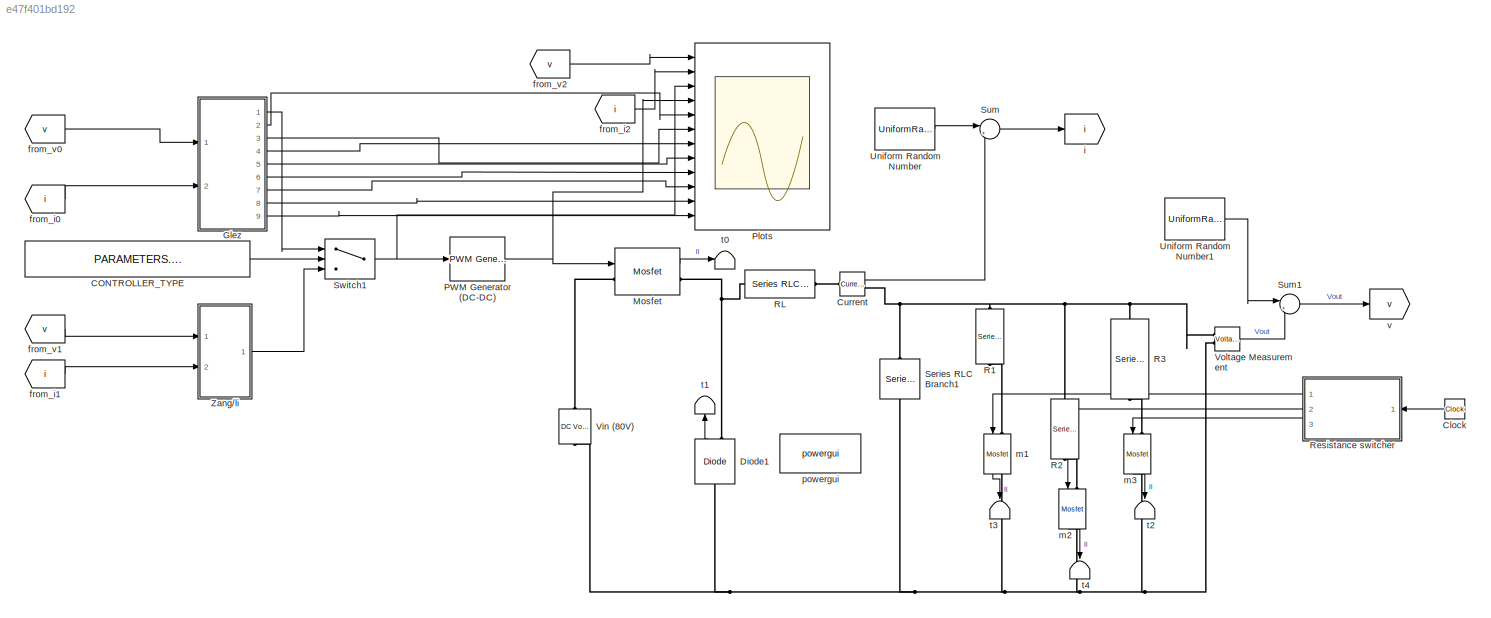
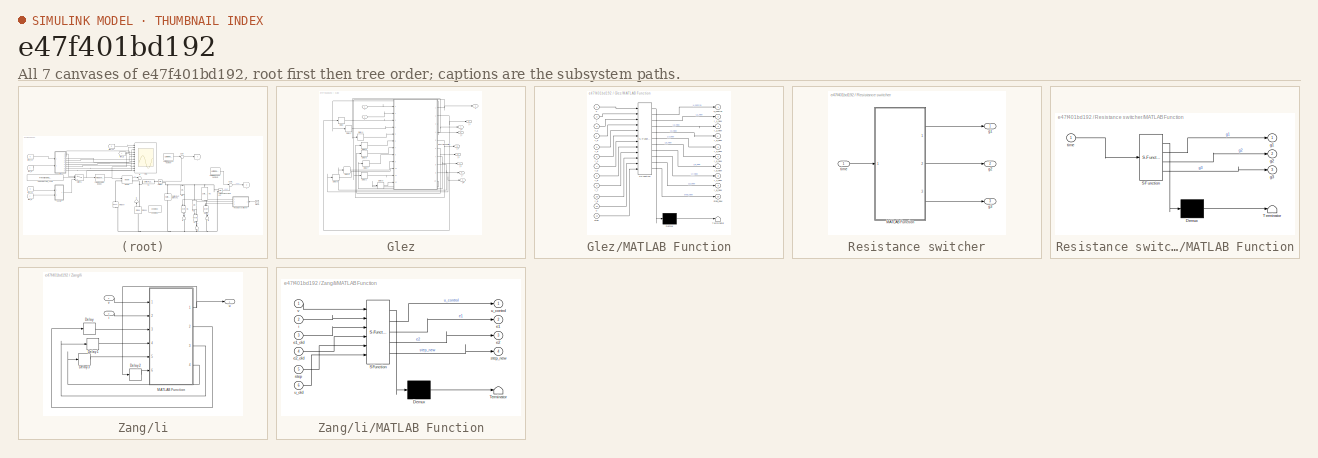
[diagram: thumbnail index - all 7 canvases of the model, root first then tree order]
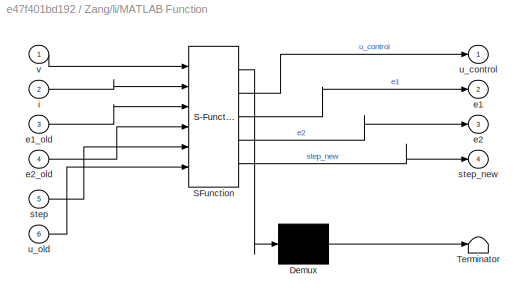
MODEL slx_e47f401bd192
KIND model
CONFIG AbsTol = auto
CONFIG EnableMultiTasking = on
CONFIG FixedStep = 1e-4
CONFIG MaxStep = 1e-4
CONFIG MinStep = auto
CONFIG RelTol = 1e-4
CONFIG SampleTimeConstraint = Unconstrained
CONFIG SolverName = VariableStepAuto
CONFIG StartTime = 0.0
CONFIG StopTime = 0.2
BLOCK [Constant] CONTROLLER_TYPE
  Value = PARAMETERS.CONTROLLER_TYPE
BLOCK [Clock] Clock
BLOCK [Reference] Current  REF=spsCurrentMeasurementLib/Current Measurement
  Ports = [0, 1, 0, 0, 0, 1, 1]
  SourceBlock = spsCurrentMeasurementLib/Current Measurement
  SourceProductBaseCode = PS
  SourceType = Current Measurement
  UserDataPersistent = on
BLOCK [Reference] Diode1  REF=spsDiodeLib/Diode
  NameLocation = right
  Ports = [0, 1, 0, 0, 0, 1, 1]
  SourceBlock = spsDiodeLib/Diode
  SourceProductBaseCode = PS
  SourceType = Diode
BLOCK [SubSystem] Glez
  Ports = [2, 9]
  RequestExecContextInheritance = off
  TreatAsAtomicUnit = on
BLOCK [Delay] Glez/Delay
  DelayLength = 1
  InitialCondition = 0
  InputPortMap = u0
  Ports = [1, 1]
BLOCK [Delay] Glez/Delay1
  DelayLength = 1
  InitialCondition = 0
  InputPortMap = u0
  Ports = [1, 1]
BLOCK [Delay] Glez/Delay2
  DelayLength = 1
  InitialCondition = 0
  InputPortMap = u0
  Ports = [1, 1]
BLOCK [Delay] Glez/Delay3
  DelayLength = 1
  InitialCondition = 0
  InputPortMap = u0
  Ports = [1, 1]
BLOCK [Delay] Glez/Delay4
  DelayLength = 1
  InitialCondition = 0
  InputPortMap = u0
  Ports = [1, 1]
BLOCK [Delay] Glez/Delay5
  DelayLength = 1
  InitialCondition = 0
  InputPortMap = u0
  Ports = [1, 1]
BLOCK [Delay] Glez/Delay6
  DelayLength = 1
  InitialCondition = 0
  InputPortMap = u0
  Ports = [1, 1]
BLOCK [Delay] Glez/Delay7
  DelayLength = 1
  InitialCondition = 0
  InputPortMap = u0
  Ports = [1, 1]
BLOCK [Delay] Glez/Delay8
  DelayLength = 1
  InitialCondition = 0
  InputPortMap = u0
  Ports = [1, 1]
BLOCK [Delay] Glez/Delay9
  DelayLength = 1
  InitialCondition = 0
  InputPortMap = u0
  Ports = [1, 1]
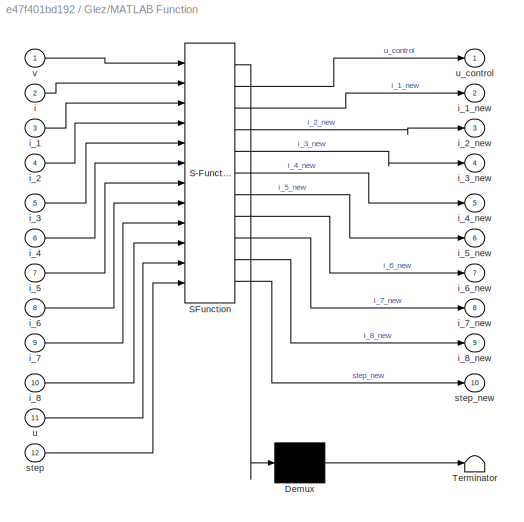
BLOCK [SubSystem] Glez/MATLAB Function
  ErrorFcn = Stateflow.Translate.translate
  PermitHierarchicalResolution = ExplicitOnly
  Ports = [12, 10]
  RequestExecContextInheritance = off
  SFBlockType = MATLAB Function
  SystemSampleTime = PARAMETERS.SAMPLING_TIME
  TreatAsAtomicUnit = on
BLOCK [Demux] Glez/MATLAB Function/ Demux 
  Outputs = 1
  Ports = [1, 1]
BLOCK [S-Function] Glez/MATLAB Function/ SFunction 
  EnableBusSupport = on
  FunctionName = sf_sfun
  Parameters = PARAMETERS
  PortCounts = [12 11]
  Ports = [12, 11]
  SFcnIsStateOwnerBlock = off
  SFunctionDeploymentMode = off
  Tag = Stateflow S-Function 2
BLOCK [Terminator] Glez/MATLAB Function/ Terminator 
BLOCK [Inport] Glez/MATLAB Function/i
  Port = 2
BLOCK [Inport] Glez/MATLAB Function/i_1
  Port = 3
BLOCK [Outport] Glez/MATLAB Function/i_1_new
  Port = 2
BLOCK [Inport] Glez/MATLAB Function/i_2
  Port = 4
BLOCK [Outport] Glez/MATLAB Function/i_2_new
  Port = 3
BLOCK [Inport] Glez/MATLAB Function/i_3
  Port = 5
BLOCK [Outport] Glez/MATLAB Function/i_3_new
  Port = 4
BLOCK [Inport] Glez/MATLAB Function/i_4
  Port = 6
BLOCK [Outport] Glez/MATLAB Function/i_4_new
  Port = 5
BLOCK [Inport] Glez/MATLAB Function/i_5
  Port = 7
BLOCK [Outport] Glez/MATLAB Function/i_5_new
  Port = 6
BLOCK [Inport] Glez/MATLAB Function/i_6
  Port = 8
BLOCK [Outport] Glez/MATLAB Function/i_6_new
  Port = 7
BLOCK [Inport] Glez/MATLAB Function/i_7
  Port = 9
BLOCK [Outport] Glez/MATLAB Function/i_7_new
  Port = 8
BLOCK [Inport] Glez/MATLAB Function/i_8
  Port = 10
BLOCK [Outport] Glez/MATLAB Function/i_8_new
  Port = 9
BLOCK [Inport] Glez/MATLAB Function/step
  Port = 12
BLOCK [Outport] Glez/MATLAB Function/step_new
  Port = 10
BLOCK [Inport] Glez/MATLAB Function/u
  Port = 11
BLOCK [Outport] Glez/MATLAB Function/u_control
BLOCK [Inport] Glez/MATLAB Function/v
BLOCK [Inport] Glez/i
  Port = 2
BLOCK [Outport] Glez/i_1
  Port = 2
BLOCK [Outport] Glez/i_2
  Port = 3
BLOCK [Outport] Glez/i_3
  Port = 4
BLOCK [Outport] Glez/i_4
  Port = 5
BLOCK [Outport] Glez/i_5
  Port = 6
BLOCK [Outport] Glez/i_6
  Port = 7
BLOCK [Outport] Glez/i_7
  Port = 8
BLOCK [Outport] Glez/i_8
  Port = 9
BLOCK [Outport] Glez/u
BLOCK [Inport] Glez/v
BLOCK [Reference] Mosfet  REF=spsMosfetLib/Mosfet
  Ports = [1, 1, 0, 0, 0, 1, 1]
  SourceBlock = spsMosfetLib/Mosfet
  SourceProductBaseCode = PS
  SourceType = Mosfet
BLOCK [Reference] PWM Generator (DC-DC)  REF=spsPWMGeneratorDCDCLib/PWM Generator
(DC-DC)
  Ports = [1, 1]
  SourceBlock = spsPWMGeneratorDCDCLib/PWM Generator\n(DC-DC)
  SourceProductBaseCode = PS
  SourceType = PWM Generator (DC-DC)
BLOCK [Scope] Plots
  Floating = off
  NumInputPorts = 12
  Ports = [12]
  ScopeSpecificationString = Simulink.scopes.TimeScopeBlockCfg('CurrentConfiguration', extmgr.ConfigurationSet(extmgr.Configuration('Core','General UI',true),extmgr.Configuration('Core','Source UI',true),extmgr.Configuration('Sources','WiredSimulink',true,'DataLoggingVariableName','simulation_data','DataLogging',true,'DataLoggingSaveFormat','StructureWithTime'),extmgr.Configuration('Visuals','Time Domain',true,'SerializedDisp...<+3720ch>
BLOCK [Reference] R1  REF=spsSeriesRLCBranchLib/Series RLC Branch
  NameLocation = left
  Ports = [0, 0, 0, 0, 0, 1, 1]
  SourceBlock = spsSeriesRLCBranchLib/Series RLC Branch
  SourceProductBaseCode = PS
  SourceType = Series RLC Branch
BLOCK [Reference] R2  REF=spsSeriesRLCBranchLib/Series RLC Branch
  NameLocation = left
  Ports = [0, 0, 0, 0, 0, 1, 1]
  SourceBlock = spsSeriesRLCBranchLib/Series RLC Branch
  SourceProductBaseCode = PS
  SourceType = Series RLC Branch
BLOCK [Reference] R3  REF=spsSeriesRLCBranchLib/Series RLC Branch
  NameLocation = left
  Ports = [0, 0, 0, 0, 0, 1, 1]
  SourceBlock = spsSeriesRLCBranchLib/Series RLC Branch
  SourceProductBaseCode = PS
  SourceType = Series RLC Branch
BLOCK [Reference] RL  REF=spsSeriesRLCBranchLib/Series RLC Branch
  Ports = [0, 0, 0, 0, 0, 1, 1]
  SourceBlock = spsSeriesRLCBranchLib/Series RLC Branch
  SourceProductBaseCode = PS
  SourceType = Series RLC Branch
BLOCK [SubSystem] Resistance switcher
  Ports = [1, 3]
  RequestExecContextInheritance = off
BLOCK [SubSystem] Resistance switcher/MATLAB Function
  ErrorFcn = Stateflow.Translate.translate
  PermitHierarchicalResolution = ExplicitOnly
  Ports = [1, 3]
  RequestExecContextInheritance = off
  SFBlockType = MATLAB Function
  SystemSampleTime = PARAMETERS.SAMPLING_TIME
  TreatAsAtomicUnit = on
BLOCK [Demux] Resistance switcher/MATLAB Function/ Demux 
  Outputs = 1
  Ports = [1, 1]
BLOCK [S-Function] Resistance switcher/MATLAB Function/ SFunction 
  EnableBusSupport = on
  FunctionName = sf_sfun
  Parameters = PARAMETERS
  PortCounts = [1 4]
  Ports = [1, 4]
  SFcnIsStateOwnerBlock = off
  SFunctionDeploymentMode = off
  Tag = Stateflow S-Function 1
BLOCK [Terminator] Resistance switcher/MATLAB Function/ Terminator 
BLOCK [Outport] Resistance switcher/MATLAB Function/g1
BLOCK [Outport] Resistance switcher/MATLAB Function/g2
  Port = 2
BLOCK [Outport] Resistance switcher/MATLAB Function/g3
  Port = 3
BLOCK [Inport] Resistance switcher/MATLAB Function/time
BLOCK [Outport] Resistance switcher/g1
BLOCK [Outport] Resistance switcher/g2
  Port = 2
BLOCK [Outport] Resistance switcher/g3
  Port = 3
BLOCK [Inport] Resistance switcher/time
BLOCK [Reference] Series RLC Branch1  REF=spsSeriesRLCBranchLib/Series RLC Branch
  NameLocation = left
  Ports = [0, 0, 0, 0, 0, 1, 1]
  SourceBlock = spsSeriesRLCBranchLib/Series RLC Branch
  SourceProductBaseCode = PS
  SourceType = Series RLC Branch
BLOCK [Sum] Sum
  Inputs = |++
  Ports = [2, 1]
BLOCK [Sum] Sum1
  Inputs = |++
  Ports = [2, 1]
BLOCK [Switch] Switch1
  Criteria = u2 > Threshold
  InputSameDT = off
  SaturateOnIntegerOverflow = off
BLOCK [UniformRandomNumber] Uniform Random Number
  Maximum = PARAMETERS.I_NOISE
  Minimum = -PARAMETERS.I_NOISE
BLOCK [UniformRandomNumber] Uniform Random Number1
  Maximum = PARAMETERS.V_NOISE
  Minimum = -PARAMETERS.V_NOISE
BLOCK [Reference] Vin (80V)  REF=spsDCVoltageSourceLib/DC Voltage Source
  NameLocation = left
  Ports = [0, 0, 0, 0, 0, 1, 1]
  SourceBlock = spsDCVoltageSourceLib/DC Voltage Source
  SourceProductBaseCode = PS
  SourceType = DC Voltage Source
BLOCK [Reference] Voltage Measurement  REF=spsVoltageMeasurementLib/Voltage Measurement
  Ports = [0, 1, 0, 0, 0, 2]
  SourceBlock = spsVoltageMeasurementLib/Voltage Measurement
  SourceProductBaseCode = PS
  SourceType = Voltage Measurement
  UserDataPersistent = on
BLOCK [SubSystem] Zang//li
  Ports = [2, 1]
  RequestExecContextInheritance = off
  TreatAsAtomicUnit = on
BLOCK [Delay] Zang//li/Delay
  DelayLength = 1
  InitialCondition = 0
  InputPortMap = u0
  Ports = [1, 1]
BLOCK [Delay] Zang//li/Delay1
  DelayLength = 1
  InitialCondition = 0
  InputPortMap = u0
  Ports = [1, 1]
BLOCK [Delay] Zang//li/Delay2
  DelayLength = 1
  InitialCondition = 0
  InputPortMap = u0
  Ports = [1, 1]
BLOCK [Delay] Zang//li/Delay3
  DelayLength = 1
  InitialCondition = 0
  InputPortMap = u0
  Ports = [1, 1]
BLOCK [SubSystem] Zang//li/MATLAB Function
  ErrorFcn = Stateflow.Translate.translate
  PermitHierarchicalResolution = ExplicitOnly
  Ports = [6, 4]
  RequestExecContextInheritance = off
  SFBlockType = MATLAB Function
  SystemSampleTime = PARAMETERS.SAMPLING_TIME
  TreatAsAtomicUnit = on
BLOCK [Demux] Zang//li/MATLAB Function/ Demux 
  Outputs = 1
  Ports = [1, 1]
BLOCK [S-Function] Zang//li/MATLAB Function/ SFunction 
  EnableBusSupport = on
  FunctionName = sf_sfun
  Parameters = PARAMETERS
  PortCounts = [6 5]
  Ports = [6, 5]
  SFcnIsStateOwnerBlock = off
  SFunctionDeploymentMode = off
  Tag = Stateflow S-Function 3
BLOCK [Terminator] Zang//li/MATLAB Function/ Terminator 
BLOCK [Outport] Zang//li/MATLAB Function/e1
  Port = 2
BLOCK [Inport] Zang//li/MATLAB Function/e1_old
  Port = 3
BLOCK [Outport] Zang//li/MATLAB Function/e2
  Port = 3
BLOCK [Inport] Zang//li/MATLAB Function/e2_old
  Port = 4
BLOCK [Inport] Zang//li/MATLAB Function/i
  Port = 2
BLOCK [Inport] Zang//li/MATLAB Function/step
  Port = 5
BLOCK [Outport] Zang//li/MATLAB Function/step_new
  Port = 4
BLOCK [Outport] Zang//li/MATLAB Function/u_control
BLOCK [Inport] Zang//li/MATLAB Function/u_old
  Port = 6
BLOCK [Inport] Zang//li/MATLAB Function/v
BLOCK [Inport] Zang//li/i
  Port = 2
BLOCK [Outport] Zang//li/u
BLOCK [Inport] Zang//li/v
BLOCK [From] from_i0
  GotoTag = i
BLOCK [From] from_i1
  GotoTag = i
BLOCK [From] from_i2
  GotoTag = i
BLOCK [From] from_v0
  GotoTag = v
BLOCK [From] from_v1
  GotoTag = v
BLOCK [From] from_v2
  GotoTag = v
BLOCK [Goto] i
  GotoTag = i
BLOCK [Reference] m1  REF=spsMosfetLib/Mosfet
  NameLocation = left
  Ports = [1, 1, 0, 0, 0, 1, 1]
  SourceBlock = spsMosfetLib/Mosfet
  SourceProductBaseCode = PS
  SourceType = Mosfet
BLOCK [Reference] m2  REF=spsMosfetLib/Mosfet
  NameLocation = left
  Ports = [1, 1, 0, 0, 0, 1, 1]
  SourceBlock = spsMosfetLib/Mosfet
  SourceProductBaseCode = PS
  SourceType = Mosfet
BLOCK [Reference] m3  REF=spsMosfetLib/Mosfet
  NameLocation = left
  Ports = [1, 1, 0, 0, 0, 1, 1]
  SourceBlock = spsMosfetLib/Mosfet
  SourceProductBaseCode = PS
  SourceType = Mosfet
BLOCK [Reference] powergui  REF=spspowerguiLib/powergui
  Ports = []
  Priority = 1
  SourceBlock = spspowerguiLib/powergui
  SourceProductBaseCode = PS
  SourceType = PSB option menu block
BLOCK [Terminator] t0
BLOCK [Terminator] t1
  NameLocation = right
BLOCK [Terminator] t2
  NameLocation = left
BLOCK [Terminator] t3
  NameLocation = left
BLOCK [Terminator] t4
  NameLocation = left
BLOCK [Goto] v
  GotoTag = v
LINE CONTROLLER_TYPE:1 -> Switch1:2
LINE Clock:1 -> Resistance switcher:1
LINE Current:1 -> Sum:2
LINE Diode1:1 -> t1:1
LINE Glez/Delay1:1 -> Glez/MATLAB Function:4
LINE Glez/Delay2:1 -> Glez/MATLAB Function:11
LINE Glez/Delay3:1 -> Glez/MATLAB Function:12
LINE Glez/Delay4:1 -> Glez/MATLAB Function:5
LINE Glez/Delay5:1 -> Glez/MATLAB Function:6
LINE Glez/Delay6:1 -> Glez/MATLAB Function:7
LINE Glez/Delay7:1 -> Glez/MATLAB Function:8
LINE Glez/Delay8:1 -> Glez/MATLAB Function:9
LINE Glez/Delay9:1 -> Glez/MATLAB Function:10
LINE Glez/Delay:1 -> Glez/MATLAB Function:3
NET Glez/MATLAB Function:1 -> Glez/Delay2:1, Glez/u:1
LINE Glez/MATLAB Function:10 -> Glez/Delay3:1
NET Glez/MATLAB Function:2 -> Glez/Delay:1, Glez/i_1:1
NET Glez/MATLAB Function:3 -> Glez/Delay1:1, Glez/i_2:1
NET Glez/MATLAB Function:4 -> Glez/Delay4:1, Glez/i_3:1
NET Glez/MATLAB Function:5 -> Glez/Delay5:1, Glez/i_4:1
NET Glez/MATLAB Function:6 -> Glez/Delay6:1, Glez/i_5:1
NET Glez/MATLAB Function:7 -> Glez/Delay7:1, Glez/i_6:1
NET Glez/MATLAB Function:8 -> Glez/Delay8:1, Glez/i_7:1
NET Glez/MATLAB Function:9 -> Glez/Delay9:1, Glez/i_8:1
LINE Glez/i:1 -> Glez/MATLAB Function:2
LINE Glez/v:1 -> Glez/MATLAB Function:1
LINE Glez:1 -> Switch1:1
LINE Glez:2 -> Plots:5
LINE Glez:3 -> Plots:6
LINE Glez:4 -> Plots:7
LINE Glez:5 -> Plots:8
LINE Glez:6 -> Plots:9
LINE Glez:7 -> Plots:10
LINE Glez:8 -> Plots:11
LINE Glez:9 -> Plots:12
LINE Mosfet:1 -> t0:1
NET PWM Generator (DC-DC):1 -> Mosfet:1, Plots:4
LINE Resistance switcher/MATLAB Function:1 -> Resistance switcher/g1:1
LINE Resistance switcher/MATLAB Function:2 -> Resistance switcher/g2:1
LINE Resistance switcher/MATLAB Function:3 -> Resistance switcher/g3:1
LINE Resistance switcher/time:1 -> Resistance switcher/MATLAB Function:1
LINE Resistance switcher:1 -> m1:1
LINE Resistance switcher:2 -> m2:1
LINE Resistance switcher:3 -> m3:1
LINE Sum1:1 -> v:1
LINE Sum:1 -> i:1
NET Switch1:1 -> PWM Generator (DC-DC):1, Plots:3
LINE Uniform Random Number1:1 -> Sum1:1
LINE Uniform Random Number:1 -> Sum:1
LINE Voltage Measurement:1 -> Sum1:2
LINE Zang//li/Delay1:1 -> Zang//li/MATLAB Function:4
LINE Zang//li/Delay2:1 -> Zang//li/MATLAB Function:6
LINE Zang//li/Delay3:1 -> Zang//li/MATLAB Function:5
LINE Zang//li/Delay:1 -> Zang//li/MATLAB Function:3
NET Zang//li/MATLAB Function:1 -> Zang//li/Delay2:1, Zang//li/u:1
LINE Zang//li/MATLAB Function:2 -> Zang//li/Delay:1
LINE Zang//li/MATLAB Function:3 -> Zang//li/Delay1:1
LINE Zang//li/MATLAB Function:4 -> Zang//li/Delay3:1
LINE Zang//li/i:1 -> Zang//li/MATLAB Function:2
LINE Zang//li/v:1 -> Zang//li/MATLAB Function:1
LINE Zang//li:1 -> Switch1:3
LINE from_i0:1 -> Glez:2
LINE from_i1:1 -> Zang//li:2
LINE from_i2:1 -> Plots:2
LINE from_v0:1 -> Glez:1
LINE from_v1:1 -> Zang//li:1
LINE from_v2:1 -> Plots:1
LINE m1:1 -> t3:1
LINE m2:1 -> t4:1
LINE m3:1 -> t2:1
PLINE Current:LConn1 -- RL:RConn1
PNET net1: Current:RConn1 -- R1:LConn1 -- R2:LConn1 -- R3:LConn1 -- Series RLC Branch1:LConn1 -- Voltage Measurement:LConn1
PNET net2: Diode1:LConn1 -- Series RLC Branch1:RConn1 -- Vin (80V):LConn1 -- Voltage Measurement:LConn2 -- m1:RConn1 -- m2:RConn1 -- m3:RConn1
PNET net3: Diode1:RConn1 -- Mosfet:RConn1 -- RL:LConn1
PLINE Mosfet:LConn1 -- Vin (80V):RConn1
PLINE R1:RConn1 -- m1:LConn1
PLINE R2:RConn1 -- m2:LConn1
PLINE R3:RConn1 -- m3:LConn1
note: NET lines group one-source signal fan-out (src -> all destinations, sorted); 1:1 wires keep LINE; PNET lines group multi-terminal physical nets as a canonical sorted terminal list (undirected conserving connections); 2-terminal nets keep the pairwise PLINE form
CHART Resistance switcher/MATLAB Function states=1 transitions=1
  STATE_LABEL 'eML_blk_kernel()'
  STATE_LABEL 'SCRIPT:\nfunction [g1,g2,g3] = fcn(time, PARAMETERS)\n\nif PARAMETERS.PROBLEM_TYPE == 0  % Con carga en arranque\n    if time < 0.1\n        g1 = 1;\n        g2 = 0; \n        g3 = 0;\n    elseif time < 0.3 \n        g1 = 0;\n        g2 = 1;\n        g3 = 0;\n    else\n        g1 = 0;\n        g2 = 0;\n        g3 = 1;\n    end\n  \nelseif PARAMETERS.PROBLEM_TYPE == 1 % Sin carga en arranque\n\n    if time < 0.2\n     ...<+295ch>'
CHART Glez/MATLAB Function states=1 transitions=1
  STATE_LABEL 'eML_blk_kernel()'
  STATE_LABEL 'SCRIPT:\nfunction [u_control, i_1_new, i_2_new, i_3_new, i_4_new, i_5_new, i_6_new, i_7_new, i_8_new, step_new]= fcn(v, i, i_1, i_2, i_3, i_4, i_5, i_6, i_7, i_8, u, PARAMETERS, step)\n   \n    % Read parameters\n    R = PARAMETERS.R;\n    C = PARAMETERS.C;\n    L = PARAMETERS.L;\n    RC = R*C;\n\n    % States (memory) read\n    if (step == 0)\n       v_est = v;\n       i_est = i;\n       epsilon_v = 0;\n      ...<+3162ch>'
CHART Zang//li/MATLAB Function states=1 transitions=1
  STATE_LABEL 'eML_blk_kernel()'
  STATE_LABEL 'SCRIPT:\nfunction [u_control, e1, e2, step_new]= fcn(v, i, e1_old, e2_old, step, u_old, PARAMETERS)\nk = 6.0e-3 / PARAMETERS.SETTLING_TIME;\nc1 = 500*k;\nc2 = 700*k;\nalfa = 11/23;\n\nLC = PARAMETERS.C*PARAMETERS.L;\nRC =  PARAMETERS.C*PARAMETERS.R;\ne1 = v - PARAMETERS.Vd;\ne2 = (i/PARAMETERS.C) - (v/RC) - PARAMETERS.d_Vd;\nd1 = ((e1 - e1_old)/PARAMETERS.SAMPLING_TIME) - e2_old;\nd2 = - ((e2 - e2_old)/PARAME...<+871ch>'
CHART  states=0 transitions=0
CHART  states=0 transitions=0
CHART  states=0 transitions=0
